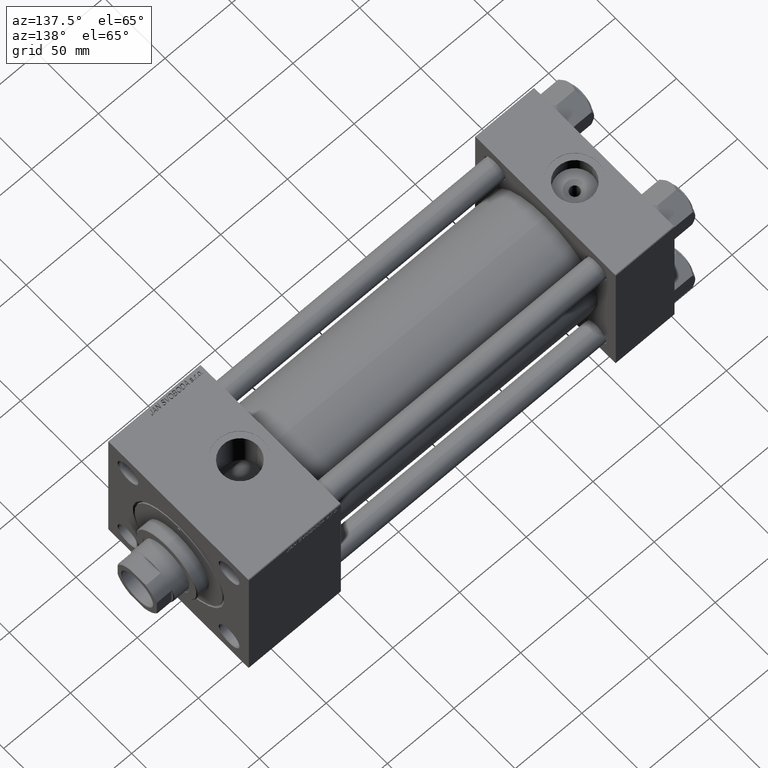
[diagram: clean part render]
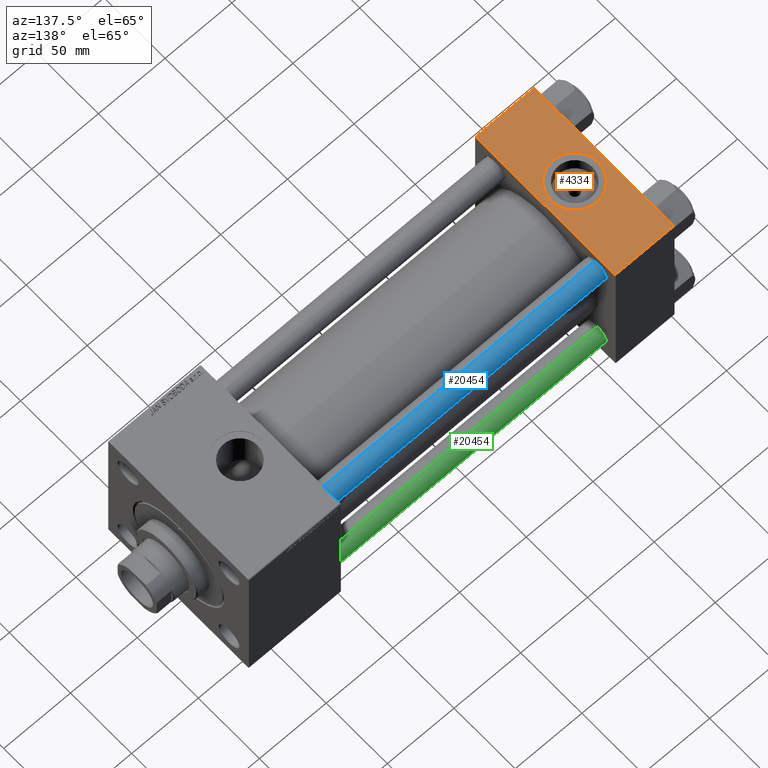
[diagram: same view with three faces highlighted in distinct colors, each labeled with its STEP entity id]
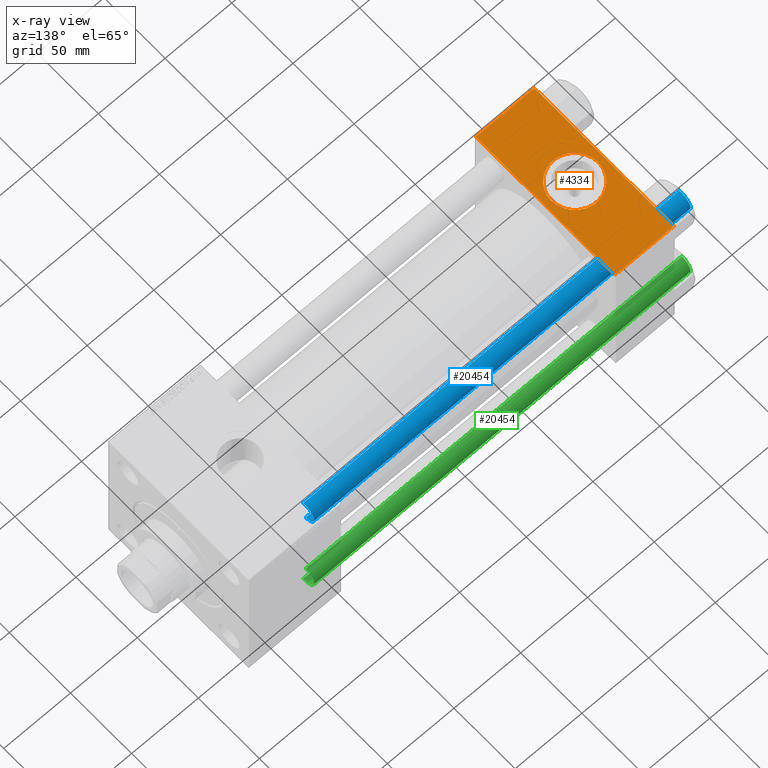
[diagram: x-ray of the same camera — body ghosted, the three highlighted faces saturated]
A machine part, auxiliary view with three faces highlighted in distinct colors.
The next image is the same camera in x-ray (body ghosted, the three faces saturated) — at least one of them is partly hidden behind the body in this view.
Their STEP definitions:

[orange] entity #4334 — the highlighted planar face has unit normal (0, 0, -1).
#631 = CARTESIAN_POINT ( 'NONE',  ( 0.000000000000000000, 57.49999999999999289, 57.50000000000000711 ) ) ;
#674 = AXIS2_PLACEMENT_3D ( 'NONE', #38451, #26639, #33593 ) ;
#1394 = DIRECTION ( 'NONE',  ( 0.000000000000000000, -1.000000000000000000, -1.206764157201257045E-16 ) ) ;
#1564 = EDGE_LOOP ( 'NONE', ( #12940, #17666, #5827, #11828 ) ) ;
#2253 = FACE_BOUND ( 'NONE', #11376, .T. ) ;
#2634 = CARTESIAN_POINT ( 'NONE',  ( 0.000000000000000000, 57.00000000000000711, 57.50000000000000711 ) ) ;
#4334 = ADVANCED_FACE ( 'NONE', ( #2253, #10730 ), #45167, .F. ) ;
#5059 = CARTESIAN_POINT ( 'NONE',  ( 22.00000000000000000, -8.673617379884035472E-15, 57.50000000000000000 ) ) ;
#5571 = DIRECTION ( 'NONE',  ( 1.000000000000000000, 0.000000000000000000, 0.000000000000000000 ) ) ;
#5827 = ORIENTED_EDGE ( 'NONE', *, *, #15839, .F. ) ;
#9032 = LINE ( 'NONE', #25189, #27619 ) ;
#10730 = FACE_OUTER_BOUND ( 'NONE', #1564, .T. ) ;
#11348 = EDGE_CURVE ( 'NONE', #37922, #40315, #50286, .T. ) ;
#11376 = EDGE_LOOP ( 'NONE', ( #18649, #40171 ) ) ;
#11828 = ORIENTED_EDGE ( 'NONE', *, *, #22287, .T. ) ;
#12612 = DIRECTION ( 'NONE',  ( 1.000000000000000000, 0.000000000000000000, 0.000000000000000000 ) ) ;
#12940 = ORIENTED_EDGE ( 'NONE', *, *, #30174, .T. ) ;
#13903 = VERTEX_POINT ( 'NONE', #43131 ) ;
#13921 = CARTESIAN_POINT ( 'NONE',  ( 0.000000000000000000, -57.00000000000003553, 57.49999999999999289 ) ) ;
#14526 = DIRECTION ( 'NONE',  ( 1.000000000000000000, 0.000000000000000000, 0.000000000000000000 ) ) ;
#14571 = VERTEX_POINT ( 'NONE', #38897 ) ;
#15839 = EDGE_CURVE ( 'NONE', #13903, #14571, #29932, .T. ) ;
#17666 = ORIENTED_EDGE ( 'NONE', *, *, #23916, .T. ) ;
#17865 = CARTESIAN_POINT ( 'NONE',  ( 44.00000000000000000, 57.49999999999999289, 57.50000000000000711 ) ) ;
#18415 = CARTESIAN_POINT ( 'NONE',  ( 39.50000000000000000, -8.673617379884035472E-15, 57.50000000000000000 ) ) ;
#18649 = ORIENTED_EDGE ( 'NONE', *, *, #26283, .F. ) ;
#19500 = VECTOR ( 'NONE', #1394, 1000.000000000000000 ) ;
#19572 = VERTEX_POINT ( 'NONE', #13921 ) ;
#21243 = DIRECTION ( 'NONE',  ( 0.000000000000000000, 0.000000000000000000, 1.000000000000000000 ) ) ;
#22287 = EDGE_CURVE ( 'NONE', #13903, #30832, #46296, .T. ) ;
#22738 = DIRECTION ( 'NONE',  ( 0.000000000000000000, 0.000000000000000000, 1.000000000000000000 ) ) ;
#23916 = EDGE_CURVE ( 'NONE', #19572, #14571, #9032, .T. ) ;
#25189 = CARTESIAN_POINT ( 'NONE',  ( 44.00000000000000000, -57.00000000000003553, 57.49999999999999289 ) ) ;
#26283 = EDGE_CURVE ( 'NONE', #40315, #37922, #33438, .T. ) ;
#26639 = DIRECTION ( 'NONE',  ( 0.000000000000000000, 1.206764157201257045E-16, -1.000000000000000000 ) ) ;
#26767 = DIRECTION ( 'NONE',  ( -1.000000000000000000, 0.000000000000000000, 0.000000000000000000 ) ) ;
#27619 = VECTOR ( 'NONE', #12612, 1000.000000000000000 ) ;
#27721 = AXIS2_PLACEMENT_3D ( 'NONE', #5059, #21243, #5571 ) ;
#28140 = AXIS2_PLACEMENT_3D ( 'NONE', #37398, #22738, #14526 ) ;
#29932 = LINE ( 'NONE', #17865, #37216 ) ;
#30174 = EDGE_CURVE ( 'NONE', #30832, #19572, #47654, .T. ) ;
#30832 = VERTEX_POINT ( 'NONE', #44937 ) ;
#33438 = CIRCLE ( 'NONE', #27721, 17.50000000000000000 ) ;
#33540 = DIRECTION ( 'NONE',  ( 0.000000000000000000, -1.000000000000000000, -1.206764157201257045E-16 ) ) ;
#33593 = DIRECTION ( 'NONE',  ( 0.000000000000000000, 1.000000000000000000, 1.206764157201257045E-16 ) ) ;
#33930 = CARTESIAN_POINT ( 'NONE',  ( 4.499999999999997335, -6.530485481376167224E-15, 57.50000000000000000 ) ) ;
#34096 = VECTOR ( 'NONE', #26767, 1000.000000000000000 ) ;
#37216 = VECTOR ( 'NONE', #33540, 1000.000000000000000 ) ;
#37398 = CARTESIAN_POINT ( 'NONE',  ( 22.00000000000000000, -8.673617379884035472E-15, 57.50000000000000000 ) ) ;
#37922 = VERTEX_POINT ( 'NONE', #33930 ) ;
#38451 = CARTESIAN_POINT ( 'NONE',  ( 44.00000000000000000, 57.49999999999999289, 57.50000000000000711 ) ) ;
#38897 = CARTESIAN_POINT ( 'NONE',  ( 44.00000000000000000, -57.00000000000003553, 57.49999999999999289 ) ) ;
#40171 = ORIENTED_EDGE ( 'NONE', *, *, #11348, .F. ) ;
#40315 = VERTEX_POINT ( 'NONE', #18415 ) ;
#43131 = CARTESIAN_POINT ( 'NONE',  ( 44.00000000000000000, 57.00000000000000711, 57.50000000000000711 ) ) ;
#44937 = CARTESIAN_POINT ( 'NONE',  ( 0.000000000000000000, 57.00000000000000711, 57.50000000000000711 ) ) ;
#45167 = PLANE ( 'NONE',  #674 ) ;
#46296 = LINE ( 'NONE', #2634, #34096 ) ;
#47654 = LINE ( 'NONE', #631, #19500 ) ;
#50286 = CIRCLE ( 'NONE', #28140, 17.50000000000000000 ) ;

[blue] entity #20454 — the highlighted cylindrical surface (edge-blend (fillet) strip) has radius 8 mm, axis along (-1, 0, 0).
#7566 = DIRECTION ( 'NONE',  ( 0.000000000000000000, 0.000000000000000000, -1.000000000000000000 ) ) ;
#7635 = CARTESIAN_POINT ( 'NONE',  ( -8.000000000000000000, 0.000000000000000000, 282.5000000000000000 ) ) ;
#8513 = CIRCLE ( 'NONE', #31461, 8.000000000000000000 ) ;
#10092 = CARTESIAN_POINT ( 'NONE',  ( 0.000000000000000000, 0.000000000000000000, 283.0000000000000000 ) ) ;
#10676 = DIRECTION ( 'NONE',  ( 1.000000000000000000, 0.000000000000000000, 0.000000000000000000 ) ) ;
#11925 = AXIS2_PLACEMENT_3D ( 'NONE', #10092, #41416, #45523 ) ;
#12844 = DIRECTION ( 'NONE',  ( -0.000000000000000000, -0.000000000000000000, -1.000000000000000000 ) ) ;
#13628 = DIRECTION ( 'NONE',  ( -0.000000000000000000, -0.000000000000000000, 1.000000000000000000 ) ) ;
#13879 = CARTESIAN_POINT ( 'NONE',  ( 0.000000000000000000, 0.000000000000000000, 0.5000000000000004441 ) ) ;
#14149 = VERTEX_POINT ( 'NONE', #50044 ) ;
#14514 = VERTEX_POINT ( 'NONE', #38398 ) ;
#15968 = EDGE_CURVE ( 'NONE', #29762, #14149, #8513, .T. ) ;
#16683 = CARTESIAN_POINT ( 'NONE',  ( -8.000000000000000000, 0.000000000000000000, 283.0000000000000000 ) ) ;
#17832 = ORIENTED_EDGE ( 'NONE', *, *, #47880, .T. ) ;
#18906 = EDGE_CURVE ( 'NONE', #29762, #14514, #36223, .T. ) ;
#20140 = DIRECTION ( 'NONE',  ( -0.000000000000000000, -0.000000000000000000, -1.000000000000000000 ) ) ;
#20454 = ADVANCED_FACE ( 'NONE', ( #41670 ), #45281, .T. ) ;
#23120 = ORIENTED_EDGE ( 'NONE', *, *, #18906, .F. ) ;
#24251 = LINE ( 'NONE', #35551, #35892 ) ;
#25828 = EDGE_LOOP ( 'NONE', ( #30827, #38609, #17832, #23120 ) ) ;
#26892 = EDGE_CURVE ( 'NONE', #14149, #49924, #24251, .T. ) ;
#29762 = VERTEX_POINT ( 'NONE', #7635 ) ;
#30827 = ORIENTED_EDGE ( 'NONE', *, *, #15968, .T. ) ;
#30938 = CARTESIAN_POINT ( 'NONE',  ( 0.000000000000000000, 0.000000000000000000, 282.5000000000000000 ) ) ;
#30990 = CIRCLE ( 'NONE', #38392, 8.000000000000000000 ) ;
#31461 = AXIS2_PLACEMENT_3D ( 'NONE', #30938, #7566, #10676 ) ;
#35551 = CARTESIAN_POINT ( 'NONE',  ( 8.000000000000000000, 9.797174393178825657E-16, 283.0000000000000000 ) ) ;
#35638 = VECTOR ( 'NONE', #12844, 1000.000000000000000 ) ;
#35892 = VECTOR ( 'NONE', #20140, 1000.000000000000000 ) ;
#36223 = LINE ( 'NONE', #16683, #35638 ) ;
#38392 = AXIS2_PLACEMENT_3D ( 'NONE', #13879, #13628, #45228 ) ;
#38398 = CARTESIAN_POINT ( 'NONE',  ( -8.000000000000000000, 0.000000000000000000, 0.5000000000000004441 ) ) ;
#38609 = ORIENTED_EDGE ( 'NONE', *, *, #26892, .T. ) ;
#40417 = CARTESIAN_POINT ( 'NONE',  ( 8.000000000000000000, 9.797174393178825657E-16, 0.5000000000000004441 ) ) ;
#41416 = DIRECTION ( 'NONE',  ( -0.000000000000000000, -0.000000000000000000, -1.000000000000000000 ) ) ;
#41670 = FACE_OUTER_BOUND ( 'NONE', #25828, .T. ) ;
#45228 = DIRECTION ( 'NONE',  ( 1.000000000000000000, 0.000000000000000000, 0.000000000000000000 ) ) ;
#45281 = CYLINDRICAL_SURFACE ( 'NONE', #11925, 8.000000000000000000 ) ;
#45523 = DIRECTION ( 'NONE',  ( -1.000000000000000000, 0.000000000000000000, 0.000000000000000000 ) ) ;
#47880 = EDGE_CURVE ( 'NONE', #49924, #14514, #30990, .T. ) ;
#49924 = VERTEX_POINT ( 'NONE', #40417 ) ;
#50044 = CARTESIAN_POINT ( 'NONE',  ( 8.000000000000000000, 9.797174393178825657E-16, 282.5000000000000000 ) ) ;

[green] entity #20454 — the highlighted cylindrical surface (edge-blend (fillet) strip) has radius 8 mm, axis along (1, -0, 0).
#7566 = DIRECTION ( 'NONE',  ( 0.000000000000000000, 0.000000000000000000, -1.000000000000000000 ) ) ;
#7635 = CARTESIAN_POINT ( 'NONE',  ( -8.000000000000000000, 0.000000000000000000, 282.5000000000000000 ) ) ;
#8513 = CIRCLE ( 'NONE', #31461, 8.000000000000000000 ) ;
#10092 = CARTESIAN_POINT ( 'NONE',  ( 0.000000000000000000, 0.000000000000000000, 283.0000000000000000 ) ) ;
#10676 = DIRECTION ( 'NONE',  ( 1.000000000000000000, 0.000000000000000000, 0.000000000000000000 ) ) ;
#11925 = AXIS2_PLACEMENT_3D ( 'NONE', #10092, #41416, #45523 ) ;
#12844 = DIRECTION ( 'NONE',  ( -0.000000000000000000, -0.000000000000000000, -1.000000000000000000 ) ) ;
#13628 = DIRECTION ( 'NONE',  ( -0.000000000000000000, -0.000000000000000000, 1.000000000000000000 ) ) ;
#13879 = CARTESIAN_POINT ( 'NONE',  ( 0.000000000000000000, 0.000000000000000000, 0.5000000000000004441 ) ) ;
#14149 = VERTEX_POINT ( 'NONE', #50044 ) ;
#14514 = VERTEX_POINT ( 'NONE', #38398 ) ;
#15968 = EDGE_CURVE ( 'NONE', #29762, #14149, #8513, .T. ) ;
#16683 = CARTESIAN_POINT ( 'NONE',  ( -8.000000000000000000, 0.000000000000000000, 283.0000000000000000 ) ) ;
#17832 = ORIENTED_EDGE ( 'NONE', *, *, #47880, .T. ) ;
#18906 = EDGE_CURVE ( 'NONE', #29762, #14514, #36223, .T. ) ;
#20140 = DIRECTION ( 'NONE',  ( -0.000000000000000000, -0.000000000000000000, -1.000000000000000000 ) ) ;
#20454 = ADVANCED_FACE ( 'NONE', ( #41670 ), #45281, .T. ) ;
#23120 = ORIENTED_EDGE ( 'NONE', *, *, #18906, .F. ) ;
#24251 = LINE ( 'NONE', #35551, #35892 ) ;
#25828 = EDGE_LOOP ( 'NONE', ( #30827, #38609, #17832, #23120 ) ) ;
#26892 = EDGE_CURVE ( 'NONE', #14149, #49924, #24251, .T. ) ;
#29762 = VERTEX_POINT ( 'NONE', #7635 ) ;
#30827 = ORIENTED_EDGE ( 'NONE', *, *, #15968, .T. ) ;
#30938 = CARTESIAN_POINT ( 'NONE',  ( 0.000000000000000000, 0.000000000000000000, 282.5000000000000000 ) ) ;
#30990 = CIRCLE ( 'NONE', #38392, 8.000000000000000000 ) ;
#31461 = AXIS2_PLACEMENT_3D ( 'NONE', #30938, #7566, #10676 ) ;
#35551 = CARTESIAN_POINT ( 'NONE',  ( 8.000000000000000000, 9.797174393178825657E-16, 283.0000000000000000 ) ) ;
#35638 = VECTOR ( 'NONE', #12844, 1000.000000000000000 ) ;
#35892 = VECTOR ( 'NONE', #20140, 1000.000000000000000 ) ;
#36223 = LINE ( 'NONE', #16683, #35638 ) ;
#38392 = AXIS2_PLACEMENT_3D ( 'NONE', #13879, #13628, #45228 ) ;
#38398 = CARTESIAN_POINT ( 'NONE',  ( -8.000000000000000000, 0.000000000000000000, 0.5000000000000004441 ) ) ;
#38609 = ORIENTED_EDGE ( 'NONE', *, *, #26892, .T. ) ;
#40417 = CARTESIAN_POINT ( 'NONE',  ( 8.000000000000000000, 9.797174393178825657E-16, 0.5000000000000004441 ) ) ;
#41416 = DIRECTION ( 'NONE',  ( -0.000000000000000000, -0.000000000000000000, -1.000000000000000000 ) ) ;
#41670 = FACE_OUTER_BOUND ( 'NONE', #25828, .T. ) ;
#45228 = DIRECTION ( 'NONE',  ( 1.000000000000000000, 0.000000000000000000, 0.000000000000000000 ) ) ;
#45281 = CYLINDRICAL_SURFACE ( 'NONE', #11925, 8.000000000000000000 ) ;
#45523 = DIRECTION ( 'NONE',  ( -1.000000000000000000, 0.000000000000000000, 0.000000000000000000 ) ) ;
#47880 = EDGE_CURVE ( 'NONE', #49924, #14514, #30990, .T. ) ;
#49924 = VERTEX_POINT ( 'NONE', #40417 ) ;
#50044 = CARTESIAN_POINT ( 'NONE',  ( 8.000000000000000000, 9.797174393178825657E-16, 282.5000000000000000 ) ) ;